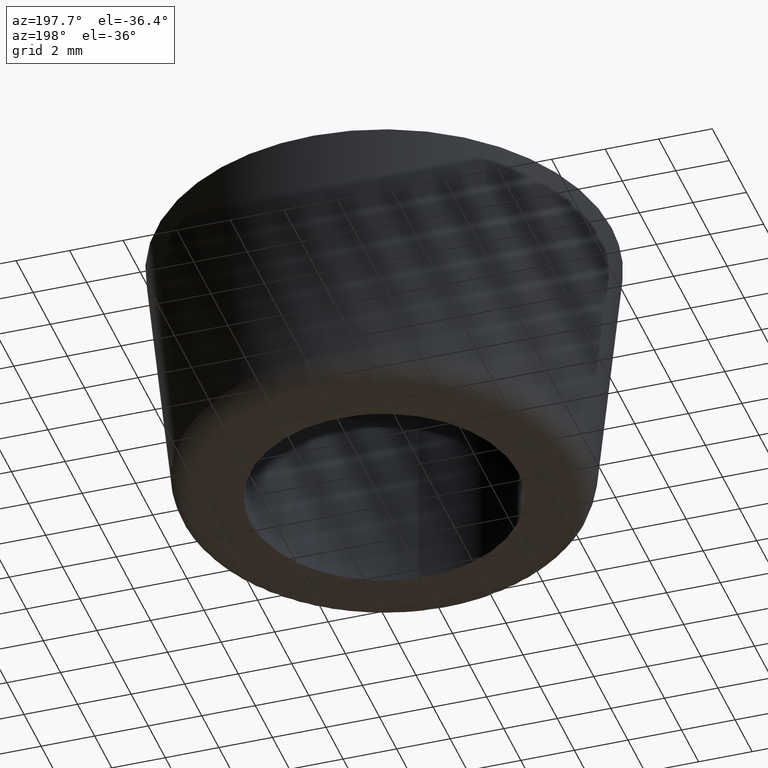
[diagram: clean part render]
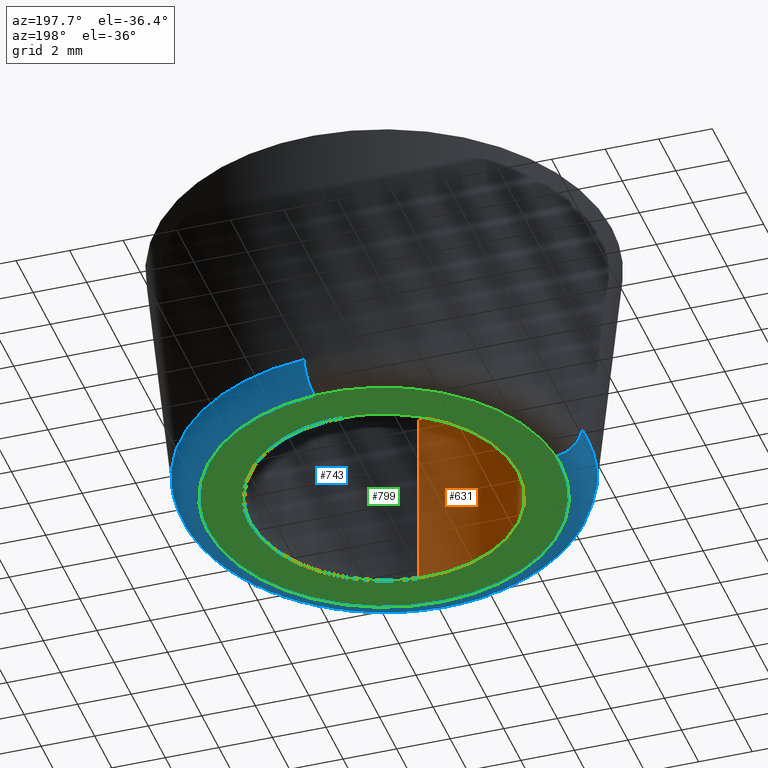
[diagram: same view with three faces highlighted in distinct colors, each labeled with its STEP entity id]
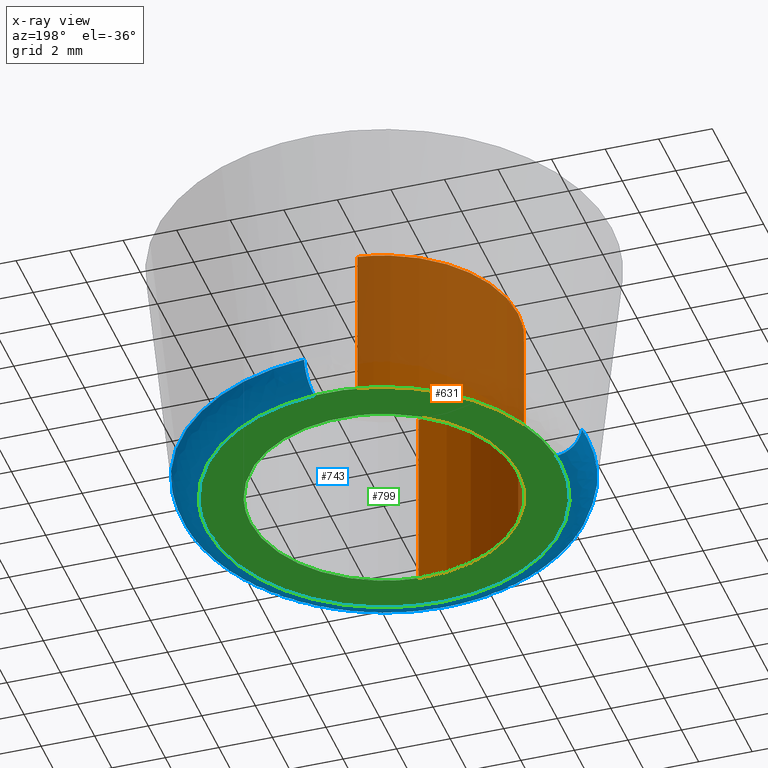
[diagram: x-ray of the same camera — body ghosted, the three highlighted faces saturated]
A machine part, auxiliary view with three faces highlighted in distinct colors.
The next image is the same camera in x-ray (body ghosted, the three faces saturated) — at least one of them is partly hidden behind the body in this view.
Their STEP definitions:

[orange] entity #631 — the highlighted face is a freeform B-spline surface patch.
#468=CARTESIAN_POINT('',(-0.590165331401785,4.965048326207590,4.031988E-015));
#469=VERTEX_POINT('',#468);
#487=CARTESIAN_POINT('',(0.305236716672421,-4.990674357915885,-7.813195E-015));
#488=VERTEX_POINT('',#487);
#502=CARTESIAN_POINT('',(0.305236790486046,-4.990674353401427,7.0));
#503=VERTEX_POINT('',#502);
#504=CARTESIAN_POINT('',(0.305236790486046,-4.990674353401427,7.0));
#505=CARTESIAN_POINT('',(0.305236716672421,-4.990674357915885,-7.813195E-015));
#506=QUASI_UNIFORM_CURVE('',1,(#504,#505),.UNSPECIFIED.,.F.,.U.);
#507=EDGE_CURVE('',#503,#488,#506,.T.);
#524=CARTESIAN_POINT('',(-0.590165403473845,4.965048317640905,7.0));
#525=VERTEX_POINT('',#524);
#541=CARTESIAN_POINT('',(-0.590165403473845,4.965048317640905,7.0));
#542=CARTESIAN_POINT('',(-0.590165331401785,4.965048326207590,4.031988E-015));
#543=QUASI_UNIFORM_CURVE('',1,(#541,#542),.UNSPECIFIED.,.F.,.U.);
#544=EDGE_CURVE('',#525,#469,#543,.T.);
#549=CARTESIAN_POINT('',(0.305242697674285,-4.990673992109334,7.175000000000001));
#550=CARTESIAN_POINT('',(-4.685431294435048,-5.295916689783620,7.175000000000001));
#551=CARTESIAN_POINT('',(-4.990673992109334,-0.305242697674285,7.175000000000001));
#552=CARTESIAN_POINT('',(-5.278930983662638,4.407717454197504,7.175000000000000));
#553=CARTESIAN_POINT('',(-0.590171173283792,4.965047631818332,7.175000000000001));
#554=CARTESIAN_POINT('',(0.305242697674285,-4.990673992109334,-0.179375000000000));
#555=CARTESIAN_POINT('',(-4.685431294435048,-5.295916689783620,-0.179375000000000));
#556=CARTESIAN_POINT('',(-4.990673992109334,-0.305242697674285,-0.179375000000000));
#557=CARTESIAN_POINT('',(-5.278930983662638,4.407717454197504,-0.179375000000000));
#558=CARTESIAN_POINT('',(-0.590171173283792,4.965047631818332,-0.179375000000000));
#566=(BOUNDED_SURFACE()B_SPLINE_SURFACE(2,1,((#549,#554),(#550,#555),(#551,#556),(#552,#557),(#553,#558)),.UNSPECIFIED.,.F.,.F.,.U.)B_SPLINE_SURFACE_WITH_KNOTS((3,2,3),(2,2),(0.0,8.284271247461899,16.237171645025320),(0.0,7.354375000000001),.UNSPECIFIED.)GEOMETRIC_REPRESENTATION_ITEM()RATIONAL_B_SPLINE_SURFACE(((1.0,1.0),(0.707106781186548,0.707106781186548),(1.0,1.0),(0.718822509939086,0.718822509939086),(0.977505800795127,0.977505800795127)))REPRESENTATION_ITEM('')SURFACE());
#567=CARTESIAN_POINT('',(-5.0,0.0,0.0));
#568=VERTEX_POINT('',#567);
#569=CARTESIAN_POINT('',(-5.0,0.0,0.0));
#570=CARTESIAN_POINT('',(-5.0,4.440877891679133,0.0));
#571=CARTESIAN_POINT('',(-0.590165331401785,4.965048326207590,4.031988E-015));
#579=(BOUNDED_CURVE()B_SPLINE_CURVE(2,(#569,#570,#571),.UNSPECIFIED.,.F.,.U.)B_SPLINE_CURVE_WITH_KNOTS((3,3),(0.0,0.229562672365118),.UNSPECIFIED.)CURVE()GEOMETRIC_REPRESENTATION_ITEM()RATIONAL_B_SPLINE_CURVE((1.0,0.731050599886250,0.956027143941363))REPRESENTATION_ITEM(''));
#580=EDGE_CURVE('',#568,#469,#579,.T.);
#581=ORIENTED_EDGE('',*,*,#580,.T.);
#582=ORIENTED_EDGE('',*,*,#544,.F.);
#583=CARTESIAN_POINT('',(-5.0,0.0,7.0));
#584=VERTEX_POINT('',#583);
#585=CARTESIAN_POINT('',(-5.0,0.0,7.0));
#586=CARTESIAN_POINT('',(-5.000000000000001,4.440877826762086,6.999999999999999));
#587=CARTESIAN_POINT('',(-0.590165403473845,4.965048317640905,7.000000000000001));
#595=(BOUNDED_CURVE()B_SPLINE_CURVE(2,(#585,#586,#587),.UNSPECIFIED.,.F.,.U.)B_SPLINE_CURVE_WITH_KNOTS((3,3),(0.0,0.229562669911886),.UNSPECIFIED.)CURVE()GEOMETRIC_REPRESENTATION_ITEM()RATIONAL_B_SPLINE_CURVE((1.0,0.731050602760390,0.956027139132919))REPRESENTATION_ITEM(''));
#596=EDGE_CURVE('',#584,#525,#595,.T.);
#597=ORIENTED_EDGE('',*,*,#596,.F.);
#598=CARTESIAN_POINT('',(0.305236790486046,-4.990674353401427,7.0));
#599=CARTESIAN_POINT('',(0.152760854617503,-5.0,7.000000000000001));
#600=CARTESIAN_POINT('',(0.0,-5.0,7.0));
#601=CARTESIAN_POINT('',(-5.000000000000001,-5.000000000000001,6.999999999999999));
#602=CARTESIAN_POINT('',(-5.0,0.0,7.0));
#610=(BOUNDED_CURVE()B_SPLINE_CURVE(2,(#598,#599,#600,#601,#602),.UNSPECIFIED.,.F.,.U.)B_SPLINE_CURVE_WITH_KNOTS((3,2,3),(0.739333166476211,0.750000000000000,1.0),.UNSPECIFIED.)CURVE()GEOMETRIC_REPRESENTATION_ITEM()RATIONAL_B_SPLINE_CURVE((0.976072479386452,0.987503027178681,1.0,0.707106781186548,1.0))REPRESENTATION_ITEM(''));
#611=EDGE_CURVE('',#503,#584,#610,.T.);
#612=ORIENTED_EDGE('',*,*,#611,.F.);
#613=ORIENTED_EDGE('',*,*,#507,.T.);
#614=CARTESIAN_POINT('',(0.305236716672421,-4.990674357915885,-7.813195E-015));
#615=CARTESIAN_POINT('',(0.152760817607214,-5.000000000000001,0.0));
#616=CARTESIAN_POINT('',(0.0,-5.0,0.0));
#617=CARTESIAN_POINT('',(-5.000000000000001,-5.000000000000001,0.0));
#618=CARTESIAN_POINT('',(-5.0,0.0,0.0));
#626=(BOUNDED_CURVE()B_SPLINE_CURVE(2,(#614,#615,#616,#617,#618),.UNSPECIFIED.,.F.,.U.)B_SPLINE_CURVE_WITH_KNOTS((3,2,3),(0.739333169028232,0.750000000000000,1.0),.UNSPECIFIED.)CURVE()GEOMETRIC_REPRESENTATION_ITEM()RATIONAL_B_SPLINE_CURVE((0.976072484855930,0.987503030168560,1.0,0.707106781186548,1.0))REPRESENTATION_ITEM(''));
#627=EDGE_CURVE('',#488,#568,#626,.T.);
#628=ORIENTED_EDGE('',*,*,#627,.T.);
#629=EDGE_LOOP('',(#581,#582,#597,#612,#613,#628));
#630=FACE_OUTER_BOUND('',#629,.T.);
#631=ADVANCED_FACE('',(#630),#566,.F.);

[blue] entity #743 — the highlighted face is a freeform B-spline surface patch.
#58=CARTESIAN_POINT('',(0.595502299639460,-7.566652729299925,0.900494361166925));
#59=VERTEX_POINT('',#58);
#60=CARTESIAN_POINT('',(-7.057718579691434,-2.792394120895210,0.900494336007843));
#61=VERTEX_POINT('',#60);
#62=CARTESIAN_POINT('',(0.595502299639460,-7.566652729299925,0.900494361166925));
#63=CARTESIAN_POINT('',(0.298210780512778,-7.590049839335957,0.900494360497936));
#64=CARTESIAN_POINT('',(-3.701196E-009,-7.590049842201561,0.900494359792231));
#65=CARTESIAN_POINT('',(-5.159520854105500,-7.590049891781074,0.900494347582419));
#66=CARTESIAN_POINT('',(-7.057718579691434,-2.792394120895211,0.900494336007843));
#74=(BOUNDED_CURVE()B_SPLINE_CURVE(2,(#62,#63,#64,#65,#66),.UNSPECIFIED.,.F.,.U.)B_SPLINE_CURVE_WITH_KNOTS((3,2,3),(0.736331439895390,0.750000000000000,0.937532622925810),.UNSPECIFIED.)CURVE()GEOMETRIC_REPRESENTATION_ITEM()RATIONAL_B_SPLINE_CURVE((0.969723646802467,0.983986285737662,1.0,0.780291865754920,0.890203273054767))REPRESENTATION_ITEM(''));
#75=EDGE_CURVE('',#59,#61,#74,.T.);
#135=CARTESIAN_POINT('',(-7.590050000000000,0.0,0.900495999999976));
#136=VERTEX_POINT('',#135);
#137=CARTESIAN_POINT('',(-7.057718579691434,-2.792394120895211,0.900494336007843));
#138=CARTESIAN_POINT('',(-7.590049922635279,-1.446937850936312,0.900495168003910));
#139=CARTESIAN_POINT('',(-7.590050000000000,0.0,0.900495999999976));
#147=(BOUNDED_CURVE()B_SPLINE_CURVE(2,(#137,#138,#139),.UNSPECIFIED.,.F.,.U.)B_SPLINE_CURVE_WITH_KNOTS((3,3),(0.937532622925810,1.0),.UNSPECIFIED.)CURVE()GEOMETRIC_REPRESENTATION_ITEM()RATIONAL_B_SPLINE_CURVE((0.890203273054767,0.926814915431628,1.0))REPRESENTATION_ITEM(''));
#148=EDGE_CURVE('',#61,#136,#147,.T.);
#197=CARTESIAN_POINT('',(7.590050000000000,0.0,0.900495999999976));
#198=VERTEX_POINT('',#197);
#199=CARTESIAN_POINT('',(7.590050000000000,0.0,0.900495999999976));
#200=CARTESIAN_POINT('',(7.590049993570903,-7.016175686975174,0.900495180583450));
#201=CARTESIAN_POINT('',(0.595502299639460,-7.566652729299925,0.900494361166925));
#209=(BOUNDED_CURVE()B_SPLINE_CURVE(2,(#199,#200,#201),.UNSPECIFIED.,.F.,.U.)B_SPLINE_CURVE_WITH_KNOTS((3,3),(0.500000000000000,0.736331439895390),.UNSPECIFIED.)CURVE()GEOMETRIC_REPRESENTATION_ITEM()RATIONAL_B_SPLINE_CURVE((1.0,0.723120495448885,0.969723646802467))REPRESENTATION_ITEM(''));
#210=EDGE_CURVE('',#198,#59,#209,.T.);
#212=CARTESIAN_POINT('',(0.571734188844041,7.568485494738575,0.900496015726226));
#213=VERTEX_POINT('',#212);
#214=CARTESIAN_POINT('',(0.571734188844041,7.568485494738575,0.900496015726226));
#215=CARTESIAN_POINT('',(7.590050000000000,7.038312327046833,0.900495999999976));
#216=CARTESIAN_POINT('',(7.590050000000000,0.0,0.900495999999976));
#224=(BOUNDED_CURVE()B_SPLINE_CURVE(2,(#214,#215,#216),.UNSPECIFIED.,.F.,.U.)B_SPLINE_CURVE_WITH_KNOTS((3,3),(0.263129840737018,0.500000000000000),.UNSPECIFIED.)CURVE()GEOMETRIC_REPRESENTATION_ITEM()RATIONAL_B_SPLINE_CURVE((0.970850634528547,0.722489346450440,1.0))REPRESENTATION_ITEM(''));
#225=EDGE_CURVE('',#213,#198,#224,.T.);
#227=CARTESIAN_POINT('',(-7.568485494738667,0.571734188842882,0.900496015726277));
#228=VERTEX_POINT('',#227);
#244=CARTESIAN_POINT('',(-7.590050000000000,0.0,0.900495999999976));
#245=CARTESIAN_POINT('',(-7.590050000000000,0.286273776309077,0.900495999999976));
#246=CARTESIAN_POINT('',(-7.568485494738667,0.571734188842882,0.900496015726277));
#254=(BOUNDED_CURVE()B_SPLINE_CURVE(2,(#244,#245,#246),.UNSPECIFIED.,.F.,.U.)B_SPLINE_CURVE_WITH_KNOTS((3,3),(0.0,0.013129840736966),.UNSPECIFIED.)CURVE()GEOMETRIC_REPRESENTATION_ITEM()RATIONAL_B_SPLINE_CURVE((1.0,0.984617434736169,0.970850634528658))REPRESENTATION_ITEM(''));
#255=EDGE_CURVE('',#136,#228,#254,.T.);
#632=CARTESIAN_POINT('',(0.572066081762728,7.572879016559214,0.966646656147357));
#633=CARTESIAN_POINT('',(8.144945098321939,7.000812934796485,0.966646656147356));
#634=CARTESIAN_POINT('',(7.572879016559214,-0.572066081762727,0.966646656147357));
#635=CARTESIAN_POINT('',(7.000812934796485,-8.144945098321939,0.966646656147356));
#636=CARTESIAN_POINT('',(-0.572066081762727,-7.572879016559214,0.966646656147357));
#637=CARTESIAN_POINT('',(-8.144945098321934,-7.000812934796491,0.966646656147356));
#638=CARTESIAN_POINT('',(-7.572879016559213,0.572066081762729,0.966646656147357));
#639=CARTESIAN_POINT('',(0.569470305461897,7.538516727818608,-0.065964072829916));
#640=CARTESIAN_POINT('',(8.107987033280507,6.969046422356712,-0.065964072829916));
#641=CARTESIAN_POINT('',(7.538516727818608,-0.569470305461897,-0.065964072829916));
#642=CARTESIAN_POINT('',(6.969046422356712,-8.107987033280507,-0.065964072829916));
#643=CARTESIAN_POINT('',(-0.569470305461896,-7.538516727818608,-0.065964072829916));
#644=CARTESIAN_POINT('',(-8.107987033280500,-6.969046422356716,-0.065964072829916));
#645=CARTESIAN_POINT('',(-7.538516727818608,0.569470305461899,-0.065964072829916));
#646=CARTESIAN_POINT('',(0.491813184502272,6.510509648654870,0.002177245726246));
#647=CARTESIAN_POINT('',(7.002322833157141,6.018696464152598,0.002177245726246));
#648=CARTESIAN_POINT('',(6.510509648654870,-0.491813184502272,0.002177245726246));
#649=CARTESIAN_POINT('',(6.018696464152598,-7.002322833157140,0.002177245726246));
#650=CARTESIAN_POINT('',(-0.491813184502272,-6.510509648654870,0.002177245726246));
#651=CARTESIAN_POINT('',(-7.002322833157138,-6.018696464152602,0.002177245726246));
#652=CARTESIAN_POINT('',(-6.510509648654870,0.491813184502274,0.002177245726246));
#660=(BOUNDED_SURFACE()B_SPLINE_SURFACE(2,2,((#632,#639,#646),(#633,#640,#647),(#634,#641,#648),(#635,#642,#649),(#636,#643,#650),(#637,#644,#651),(#638,#645,#652)),.UNSPECIFIED.,.F.,.F.,.U.)B_SPLINE_SURFACE_WITH_KNOTS((3,2,2,3),(3,3),(0.0,12.582906070635820,25.165812141271630,37.748718211907452),(0.0,1.695223218216026),.UNSPECIFIED.)GEOMETRIC_REPRESENTATION_ITEM()RATIONAL_B_SPLINE_SURFACE(((0.912663109016635,0.636266921279721,0.917081473211540),(0.645350273324460,0.449908654681578,0.648474528608429),(0.912663109016635,0.636266921279721,0.917081473211540),(0.645350273324460,0.449908654681578,0.648474528608429),(0.912663109016635,0.636266921279721,0.917081473211540),(0.645350273324460,0.449908654681578,0.648474528608429),(0.912663109016635,0.636266921279721,0.917081473211540)))REPRESENTATION_ITEM('')SURFACE());
#661=CARTESIAN_POINT('',(0.496781186438953,6.576274913490228,1.399088E-016));
#662=VERTEX_POINT('',#661);
#663=CARTESIAN_POINT('',(6.595012000000000,0.0,0.0));
#664=VERTEX_POINT('',#663);
#665=CARTESIAN_POINT('',(0.496781186438953,6.576274913490228,1.399088E-016));
#666=CARTESIAN_POINT('',(6.595012000000000,6.115605859774943,0.0));
#667=CARTESIAN_POINT('',(6.595012000000000,0.0,0.0));
#675=(BOUNDED_CURVE()B_SPLINE_CURVE(2,(#665,#666,#667),.UNSPECIFIED.,.F.,.U.)B_SPLINE_CURVE_WITH_KNOTS((3,3),(0.263129840739367,0.500000000000000),.UNSPECIFIED.)CURVE()GEOMETRIC_REPRESENTATION_ITEM()RATIONAL_B_SPLINE_CURVE((0.970850634523623,0.722489346453192,1.0))REPRESENTATION_ITEM(''));
#676=EDGE_CURVE('',#662,#664,#675,.T.);
#677=ORIENTED_EDGE('',*,*,#676,.F.);
#678=CARTESIAN_POINT('',(0.571734188844041,7.568485494738575,0.900496015726226));
#679=CARTESIAN_POINT('',(0.564950991299540,7.478691087948655,6.664405E-010));
#680=CARTESIAN_POINT('',(0.496781186438953,6.576274913490228,1.399088E-016));
#688=(BOUNDED_CURVE()B_SPLINE_CURVE(2,(#678,#679,#680),.UNSPECIFIED.,.F.,.U.)B_SPLINE_CURVE_WITH_KNOTS((3,3),(-1.710023723958817,-0.277482477256408),.UNSPECIFIED.)CURVE()GEOMETRIC_REPRESENTATION_ITEM()RATIONAL_B_SPLINE_CURVE((0.888708185272026,0.660422533735787,0.892725170760684))REPRESENTATION_ITEM(''));
#689=EDGE_CURVE('',#213,#662,#688,.T.);
#690=ORIENTED_EDGE('',*,*,#689,.F.);
#691=ORIENTED_EDGE('',*,*,#225,.T.);
#692=ORIENTED_EDGE('',*,*,#210,.T.);
#693=ORIENTED_EDGE('',*,*,#75,.T.);
#694=ORIENTED_EDGE('',*,*,#148,.T.);
#695=ORIENTED_EDGE('',*,*,#255,.T.);
#696=CARTESIAN_POINT('',(-6.576274913255141,0.496781186397940,1.554542E-016));
#697=VERTEX_POINT('',#696);
#698=CARTESIAN_POINT('',(-7.568485494738667,0.571734188842882,0.900496015726277));
#699=CARTESIAN_POINT('',(-7.478691087905882,0.564950991296310,2.365542E-010));
#700=CARTESIAN_POINT('',(-6.576274913255141,0.496781186397940,1.554542E-016));
#708=(BOUNDED_CURVE()B_SPLINE_CURVE(2,(#698,#699,#700),.UNSPECIFIED.,.F.,.U.)B_SPLINE_CURVE_WITH_KNOTS((3,3),(-1.710023723958928,-0.277482476748199),.UNSPECIFIED.)CURVE()GEOMETRIC_REPRESENTATION_ITEM()RATIONAL_B_SPLINE_CURVE((0.888708185272061,0.660422533654782,0.892725170925507))REPRESENTATION_ITEM(''));
#709=EDGE_CURVE('',#228,#697,#708,.T.);
#710=ORIENTED_EDGE('',*,*,#709,.T.);
#711=CARTESIAN_POINT('',(-6.595012000000000,0.0,0.0));
#712=VERTEX_POINT('',#711);
#713=CARTESIAN_POINT('',(-6.595012000000000,0.0,0.0));
#714=CARTESIAN_POINT('',(-6.595012000000001,0.248743946379547,0.0));
#715=CARTESIAN_POINT('',(-6.576274913255141,0.496781186397940,1.554542E-016));
#723=(BOUNDED_CURVE()B_SPLINE_CURVE(2,(#713,#714,#715),.UNSPECIFIED.,.F.,.U.)B_SPLINE_CURVE_WITH_KNOTS((3,3),(0.0,0.013129840738160),.UNSPECIFIED.)CURVE()GEOMETRIC_REPRESENTATION_ITEM()RATIONAL_B_SPLINE_CURVE((1.0,0.984617434734769,0.970850634526154))REPRESENTATION_ITEM(''));
#724=EDGE_CURVE('',#712,#697,#723,.T.);
#725=ORIENTED_EDGE('',*,*,#724,.F.);
#726=CARTESIAN_POINT('',(6.595012000000000,0.0,0.0));
#727=CARTESIAN_POINT('',(6.595011999999999,-6.595011999999999,0.0));
#728=CARTESIAN_POINT('',(0.0,-6.595012000000000,0.0));
#729=CARTESIAN_POINT('',(-6.595011999999999,-6.595011999999999,0.0));
#730=CARTESIAN_POINT('',(-6.595012000000000,0.0,0.0));
#738=(BOUNDED_CURVE()B_SPLINE_CURVE(2,(#726,#727,#728,#729,#730),.UNSPECIFIED.,.F.,.U.)B_SPLINE_CURVE_WITH_KNOTS((3,2,3),(0.500000000000000,0.750000000000000,1.0),.UNSPECIFIED.)CURVE()GEOMETRIC_REPRESENTATION_ITEM()RATIONAL_B_SPLINE_CURVE((1.0,0.707106781186548,1.0,0.707106781186548,1.0))REPRESENTATION_ITEM(''));
#739=EDGE_CURVE('',#664,#712,#738,.T.);
#740=ORIENTED_EDGE('',*,*,#739,.F.);
#741=EDGE_LOOP('',(#677,#690,#691,#692,#693,#694,#695,#710,#725,#740));
#742=FACE_OUTER_BOUND('',#741,.T.);
#743=ADVANCED_FACE('',(#742),#660,.T.);

[green] entity #799 — the highlighted face is a freeform B-spline surface patch.
#468=CARTESIAN_POINT('',(-0.590165331401785,4.965048326207590,4.031988E-015));
#469=VERTEX_POINT('',#468);
#470=CARTESIAN_POINT('',(5.0,0.0,0.0));
#471=VERTEX_POINT('',#470);
#472=CARTESIAN_POINT('',(-0.590165331401785,4.965048326207590,4.031988E-015));
#473=CARTESIAN_POINT('',(-0.296117646439247,5.0,0.0));
#474=CARTESIAN_POINT('',(0.0,5.0,0.0));
#475=CARTESIAN_POINT('',(5.000000000000001,5.000000000000001,0.0));
#476=CARTESIAN_POINT('',(5.0,0.0,0.0));
#484=(BOUNDED_CURVE()B_SPLINE_CURVE(2,(#472,#473,#474,#475,#476),.UNSPECIFIED.,.F.,.U.)B_SPLINE_CURVE_WITH_KNOTS((3,2,3),(0.229562672365118,0.250000000000000,0.500000000000000),.UNSPECIFIED.)CURVE()GEOMETRIC_REPRESENTATION_ITEM()RATIONAL_B_SPLINE_CURVE((0.956027143941363,0.976056181300297,1.0,0.707106781186548,1.0))REPRESENTATION_ITEM(''));
#485=EDGE_CURVE('',#469,#471,#484,.T.);
#487=CARTESIAN_POINT('',(0.305236716672421,-4.990674357915885,-7.813195E-015));
#488=VERTEX_POINT('',#487);
#489=CARTESIAN_POINT('',(5.0,0.0,0.0));
#490=CARTESIAN_POINT('',(4.999999999999999,-4.703535981943459,0.0));
#491=CARTESIAN_POINT('',(0.305236716672421,-4.990674357915885,-7.813195E-015));
#499=(BOUNDED_CURVE()B_SPLINE_CURVE(2,(#489,#490,#491),.UNSPECIFIED.,.F.,.U.)B_SPLINE_CURVE_WITH_KNOTS((3,3),(0.500000000000000,0.739333169028232),.UNSPECIFIED.)CURVE()GEOMETRIC_REPRESENTATION_ITEM()RATIONAL_B_SPLINE_CURVE((1.0,0.719603751017988,0.976072484855930))REPRESENTATION_ITEM(''));
#500=EDGE_CURVE('',#471,#488,#499,.T.);
#567=CARTESIAN_POINT('',(-5.0,0.0,0.0));
#568=VERTEX_POINT('',#567);
#569=CARTESIAN_POINT('',(-5.0,0.0,0.0));
#570=CARTESIAN_POINT('',(-5.0,4.440877891679133,0.0));
#571=CARTESIAN_POINT('',(-0.590165331401785,4.965048326207590,4.031988E-015));
#579=(BOUNDED_CURVE()B_SPLINE_CURVE(2,(#569,#570,#571),.UNSPECIFIED.,.F.,.U.)B_SPLINE_CURVE_WITH_KNOTS((3,3),(0.0,0.229562672365118),.UNSPECIFIED.)CURVE()GEOMETRIC_REPRESENTATION_ITEM()RATIONAL_B_SPLINE_CURVE((1.0,0.731050599886250,0.956027143941363))REPRESENTATION_ITEM(''));
#580=EDGE_CURVE('',#568,#469,#579,.T.);
#614=CARTESIAN_POINT('',(0.305236716672421,-4.990674357915885,-7.813195E-015));
#615=CARTESIAN_POINT('',(0.152760817607214,-5.000000000000001,0.0));
#616=CARTESIAN_POINT('',(0.0,-5.0,0.0));
#617=CARTESIAN_POINT('',(-5.000000000000001,-5.000000000000001,0.0));
#618=CARTESIAN_POINT('',(-5.0,0.0,0.0));
#626=(BOUNDED_CURVE()B_SPLINE_CURVE(2,(#614,#615,#616,#617,#618),.UNSPECIFIED.,.F.,.U.)B_SPLINE_CURVE_WITH_KNOTS((3,2,3),(0.739333169028232,0.750000000000000,1.0),.UNSPECIFIED.)CURVE()GEOMETRIC_REPRESENTATION_ITEM()RATIONAL_B_SPLINE_CURVE((0.976072484855930,0.987503030168560,1.0,0.707106781186548,1.0))REPRESENTATION_ITEM(''));
#627=EDGE_CURVE('',#488,#568,#626,.T.);
#661=CARTESIAN_POINT('',(0.496781186438953,6.576274913490228,1.399088E-016));
#662=VERTEX_POINT('',#661);
#663=CARTESIAN_POINT('',(6.595012000000000,0.0,0.0));
#664=VERTEX_POINT('',#663);
#665=CARTESIAN_POINT('',(0.496781186438953,6.576274913490228,1.399088E-016));
#666=CARTESIAN_POINT('',(6.595012000000000,6.115605859774943,0.0));
#667=CARTESIAN_POINT('',(6.595012000000000,0.0,0.0));
#675=(BOUNDED_CURVE()B_SPLINE_CURVE(2,(#665,#666,#667),.UNSPECIFIED.,.F.,.U.)B_SPLINE_CURVE_WITH_KNOTS((3,3),(0.263129840739367,0.500000000000000),.UNSPECIFIED.)CURVE()GEOMETRIC_REPRESENTATION_ITEM()RATIONAL_B_SPLINE_CURVE((0.970850634523623,0.722489346453192,1.0))REPRESENTATION_ITEM(''));
#676=EDGE_CURVE('',#662,#664,#675,.T.);
#696=CARTESIAN_POINT('',(-6.576274913255141,0.496781186397940,1.554542E-016));
#697=VERTEX_POINT('',#696);
#711=CARTESIAN_POINT('',(-6.595012000000000,0.0,0.0));
#712=VERTEX_POINT('',#711);
#713=CARTESIAN_POINT('',(-6.595012000000000,0.0,0.0));
#714=CARTESIAN_POINT('',(-6.595012000000001,0.248743946379547,0.0));
#715=CARTESIAN_POINT('',(-6.576274913255141,0.496781186397940,1.554542E-016));
#723=(BOUNDED_CURVE()B_SPLINE_CURVE(2,(#713,#714,#715),.UNSPECIFIED.,.F.,.U.)B_SPLINE_CURVE_WITH_KNOTS((3,3),(0.0,0.013129840738160),.UNSPECIFIED.)CURVE()GEOMETRIC_REPRESENTATION_ITEM()RATIONAL_B_SPLINE_CURVE((1.0,0.984617434734769,0.970850634526154))REPRESENTATION_ITEM(''));
#724=EDGE_CURVE('',#712,#697,#723,.T.);
#726=CARTESIAN_POINT('',(6.595012000000000,0.0,0.0));
#727=CARTESIAN_POINT('',(6.595011999999999,-6.595011999999999,0.0));
#728=CARTESIAN_POINT('',(0.0,-6.595012000000000,0.0));
#729=CARTESIAN_POINT('',(-6.595011999999999,-6.595011999999999,0.0));
#730=CARTESIAN_POINT('',(-6.595012000000000,0.0,0.0));
#738=(BOUNDED_CURVE()B_SPLINE_CURVE(2,(#726,#727,#728,#729,#730),.UNSPECIFIED.,.F.,.U.)B_SPLINE_CURVE_WITH_KNOTS((3,2,3),(0.500000000000000,0.750000000000000,1.0),.UNSPECIFIED.)CURVE()GEOMETRIC_REPRESENTATION_ITEM()RATIONAL_B_SPLINE_CURVE((1.0,0.707106781186548,1.0,0.707106781186548,1.0))REPRESENTATION_ITEM(''));
#739=EDGE_CURVE('',#664,#712,#738,.T.);
#761=CARTESIAN_POINT('',(-6.576274913255141,0.496781186397940,1.554542E-016));
#762=CARTESIAN_POINT('',(-6.115605859818069,6.595011999999998,0.0));
#763=CARTESIAN_POINT('',(0.0,6.595012000000000,0.0));
#764=CARTESIAN_POINT('',(0.248743946402770,6.595012000000000,0.0));
#765=CARTESIAN_POINT('',(0.496781186438953,6.576274913490228,1.399088E-016));
#773=(BOUNDED_CURVE()B_SPLINE_CURVE(2,(#761,#762,#763,#764,#765),.UNSPECIFIED.,.F.,.U.)B_SPLINE_CURVE_WITH_KNOTS((3,2,3),(0.013129840738160,0.250000000000000,0.263129840739367),.UNSPECIFIED.)CURVE()GEOMETRIC_REPRESENTATION_ITEM()RATIONAL_B_SPLINE_CURVE((0.970850634526154,0.722489346451778,1.0,0.984617434733356,0.970850634523623))REPRESENTATION_ITEM(''));
#774=EDGE_CURVE('',#697,#662,#773,.T.);
#782=CARTESIAN_POINT('',(-7.253853920872189,-7.253766484725619,0.0));
#783=CARTESIAN_POINT('',(7.253854038800193,-7.253766484725619,0.0));
#784=CARTESIAN_POINT('',(-7.253853920872189,7.252016129259602,0.0));
#785=CARTESIAN_POINT('',(7.253854038800193,7.252016129259602,0.0));
#786=B_SPLINE_SURFACE_WITH_KNOTS('',1,1,((#782,#784),(#783,#785)),.UNSPECIFIED.,.F.,.F.,.U.,(2,2),(2,2),(0.0,14.507707959672381),(0.0,14.505782613985220),.UNSPECIFIED.);
#787=ORIENTED_EDGE('',*,*,#724,.T.);
#788=ORIENTED_EDGE('',*,*,#774,.T.);
#789=ORIENTED_EDGE('',*,*,#676,.T.);
#790=ORIENTED_EDGE('',*,*,#739,.T.);
#791=EDGE_LOOP('',(#787,#788,#789,#790));
#792=FACE_OUTER_BOUND('',#791,.T.);
#793=ORIENTED_EDGE('',*,*,#500,.F.);
#794=ORIENTED_EDGE('',*,*,#485,.F.);
#795=ORIENTED_EDGE('',*,*,#580,.F.);
#796=ORIENTED_EDGE('',*,*,#627,.F.);
#797=EDGE_LOOP('',(#793,#794,#795,#796));
#798=FACE_BOUND('',#797,.T.);
#799=ADVANCED_FACE('',(#792,#798),#786,.F.);